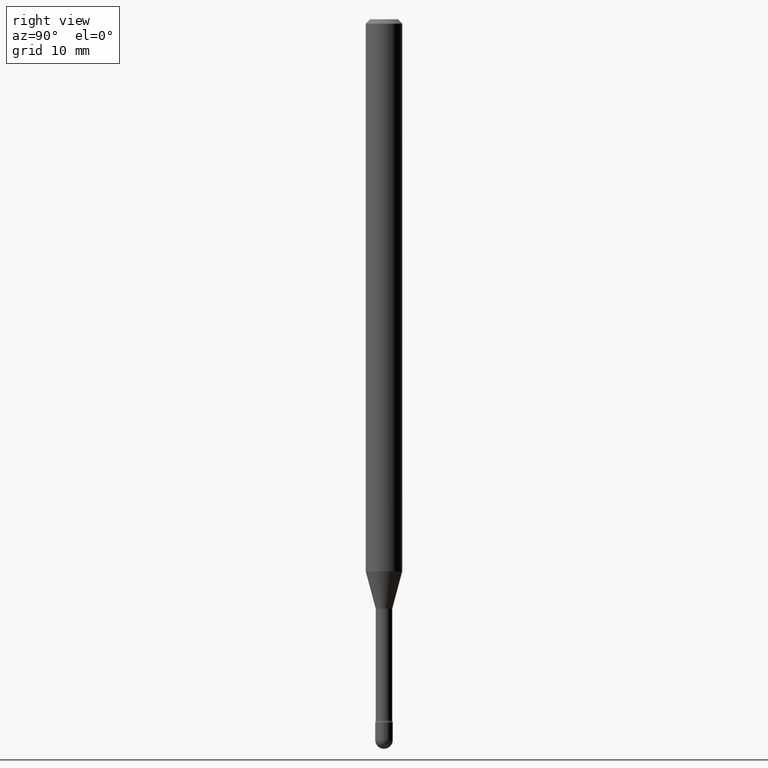
[diagram: clean part render]
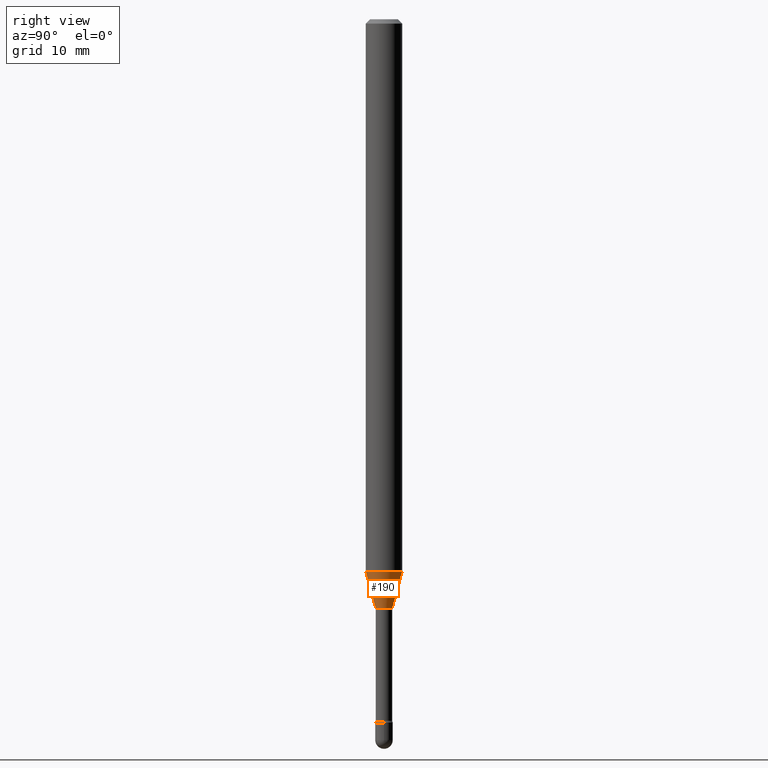
[diagram: same view with one face highlighted and labeled with its STEP entity id]
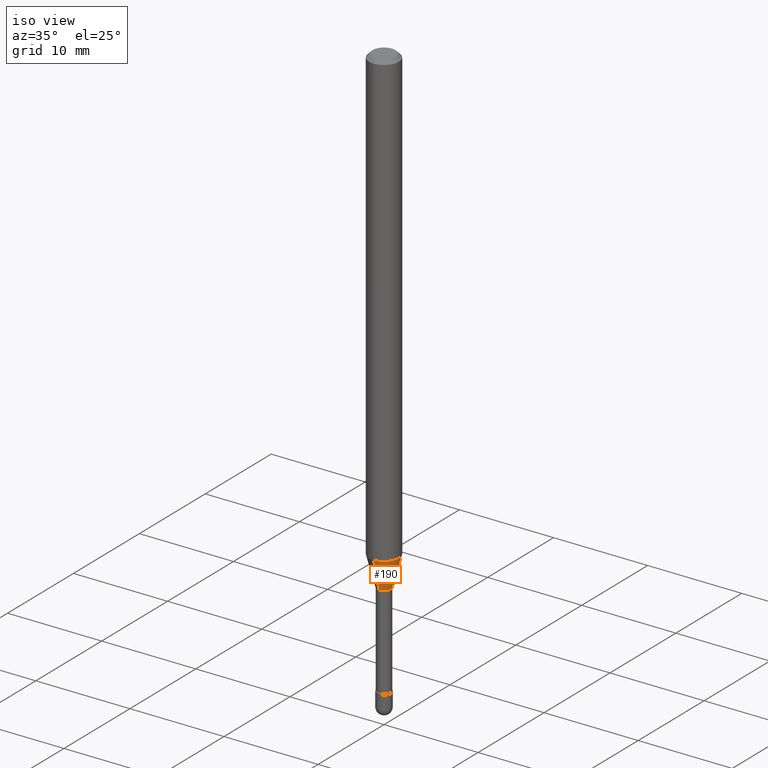
[diagram: same view with one face highlighted and labeled with its STEP entity id]
A machine part, right view. The second image highlights one B-rep face of the part: STEP entity #190.
A second angle (iso view) of the same face is appended — the face is thin or edge-on in the first view.
In plain terms, the highlighted conical surface has half-angle 15 deg.
Its self-contained STEP definition (entity closure, byte-faithful):
#22 = ORIENTED_EDGE ( 'NONE', *, *, #427, .F. ) ;
#97 = ORIENTED_EDGE ( 'NONE', *, *, #291, .T. ) ;
#118 = DIRECTION ( 'NONE',  ( 1.839019923739598738E-15, 0.2588190451025247363, 0.9659258262890673130 ) ) ;
#120 = AXIS2_PLACEMENT_3D ( 'NONE', #217, #304, #170 ) ;
#128 = EDGE_CURVE ( 'NONE', #552, #541, #425, .T. ) ;
#131 = AXIS2_PLACEMENT_3D ( 'NONE', #281, #145, #191 ) ;
#133 = CARTESIAN_POINT ( 'NONE',  ( 4.935267362622470466E-29, -7.046010439849886281E-15, -2.018092501787273285 ) ) ;
#145 = DIRECTION ( 'NONE',  ( -2.445510975464045356E-29, 3.491420950035621871E-15, 1.000000000000000000 ) ) ;
#150 = EDGE_LOOP ( 'NONE', ( #97, #396, #22, #494 ) ) ;
#170 = DIRECTION ( 'NONE',  ( -6.982962677686265922E-15, -1.000000000000000000, 0.000000000000000000 ) ) ;
#175 = DIRECTION ( 'NONE',  ( -2.445510975464045356E-29, 3.491420950035621871E-15, 1.000000000000000000 ) ) ;
#190 = ADVANCED_FACE ( 'NONE', ( #447 ), #278, .T. ) ;
#191 = DIRECTION ( 'NONE',  ( -6.982962677686265922E-15, -1.000000000000000000, 4.370956789862821150E-15 ) ) ;
#214 = VECTOR ( 'NONE', #118, 39.37007874015748854 ) ;
#217 = CARTESIAN_POINT ( 'NONE',  ( 4.935267362622470466E-29, -7.046010439849886281E-15, -2.018092501787273285 ) ) ;
#233 = CARTESIAN_POINT ( 'NONE',  ( -4.364351673553455210E-16, -0.06250000000000663358, -1.891990657300387513 ) ) ;
#254 = CARTESIAN_POINT ( 'NONE',  ( 2.040047249754971165E-16, 0.02871111260565692783, -2.018092501787273285 ) ) ;
#278 = CONICAL_SURFACE ( 'NONE', #565, 0.02871111260566397427, 0.2617993877991500740 ) ;
#281 = CARTESIAN_POINT ( 'NONE',  ( 4.626883917903531477E-29, -6.605735818170240970E-15, -1.891990657300387735 ) ) ;
#286 = CARTESIAN_POINT ( 'NONE',  ( -2.004886277601498644E-16, -0.02871111260567102419, -2.018092501787273285 ) ) ;
#291 = EDGE_CURVE ( 'NONE', #401, #552, #557, .T. ) ;
#304 = DIRECTION ( 'NONE',  ( -2.445510975464045356E-29, 3.491420950035621871E-15, 1.000000000000000000 ) ) ;
#306 = CIRCLE ( 'NONE', #131, 0.06250000000000000000 ) ;
#324 = VERTEX_POINT ( 'NONE', #233 ) ;
#330 = EDGE_CURVE ( 'NONE', #401, #324, #403, .T. ) ;
#396 = ORIENTED_EDGE ( 'NONE', *, *, #128, .T. ) ;
#401 = VERTEX_POINT ( 'NONE', #286 ) ;
#403 = LINE ( 'NONE', #411, #414 ) ;
#411 = CARTESIAN_POINT ( 'NONE',  ( -2.004886277601498644E-16, -0.02871111260567102419, -2.018092501787273285 ) ) ;
#414 = VECTOR ( 'NONE', #540, 39.37007874015748854 ) ;
#425 = LINE ( 'NONE', #254, #214 ) ;
#427 = EDGE_CURVE ( 'NONE', #324, #541, #306, .T. ) ;
#447 = FACE_OUTER_BOUND ( 'NONE', #150, .T. ) ;
#474 = CARTESIAN_POINT ( 'NONE',  ( 4.440892098501085673E-16, 0.06249999999999335948, -1.891990657300388179 ) ) ;
#494 = ORIENTED_EDGE ( 'NONE', *, *, #330, .F. ) ;
#526 = DIRECTION ( 'NONE',  ( -6.982962677686265922E-15, -1.000000000000000000, 0.000000000000000000 ) ) ;
#540 = DIRECTION ( 'NONE',  ( -1.807323732225328562E-15, -0.2588190451025179639, 0.9659258262890690894 ) ) ;
#541 = VERTEX_POINT ( 'NONE', #474 ) ;
#552 = VERTEX_POINT ( 'NONE', #556 ) ;
#556 = CARTESIAN_POINT ( 'NONE',  ( 3.240469674128030761E-16, 0.02871111260565692783, -2.018092501787273285 ) ) ;
#557 = CIRCLE ( 'NONE', #120, 0.02871111260566397427 ) ;
#565 = AXIS2_PLACEMENT_3D ( 'NONE', #133, #175, #526 ) ;